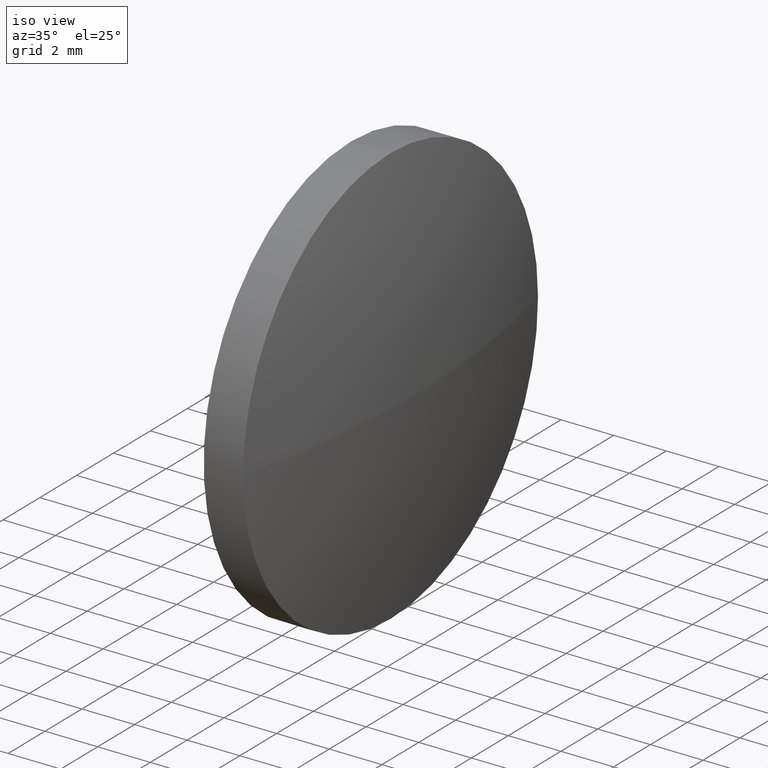
[diagram: clean part render]
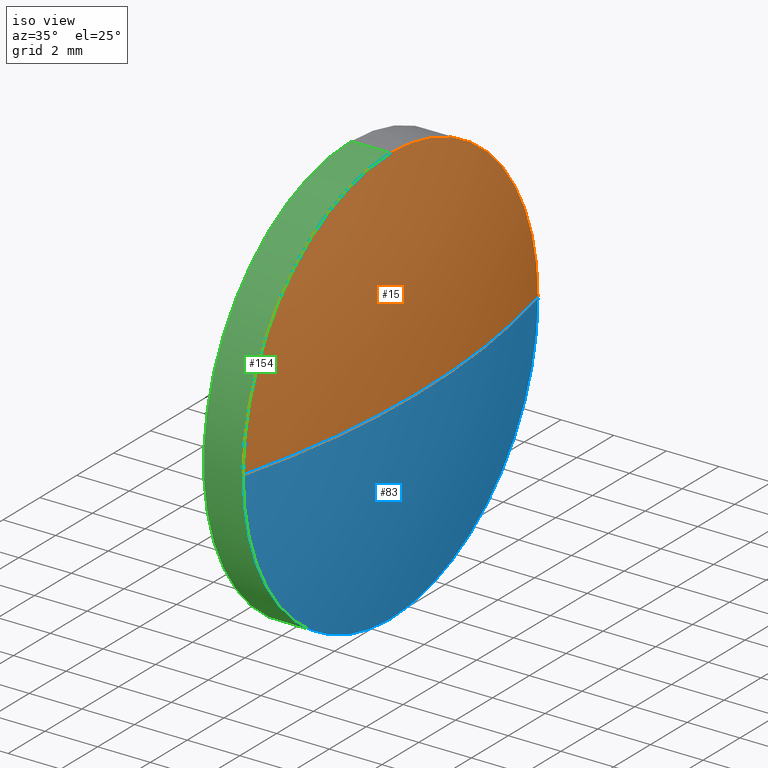
[diagram: same view with three faces highlighted in distinct colors, each labeled with its STEP entity id]
A machine part, iso view with three faces highlighted in distinct colors.
Their STEP definitions:

[orange] entity #15 — the highlighted spherical surface has radius 32.5 mm.
#3 = CIRCLE ( 'NONE', #37, 8.000000000000007100 ) ;
#15 = ADVANCED_FACE ( 'NONE', ( #181 ), #109, .T. ) ;
#17 = CARTESIAN_POINT ( 'NONE',  ( 646.4878629679331000, 90.34373980560192800, 8.000000000000007100 ) ) ;
#21 = DIRECTION ( 'NONE',  ( 0.0000000000000000000, -1.224646799147353200E-016, 1.000000000000000000 ) ) ;
#31 = CIRCLE ( 'NONE', #67, 32.50000000000008500 ) ;
#32 = EDGE_CURVE ( 'NONE', #180, #130, #31, .T. ) ;
#37 = AXIS2_PLACEMENT_3D ( 'NONE', #58, #162, #135 ) ;
#39 = DIRECTION ( 'NONE',  ( 0.0000000000000000000, -1.000000000000000000, 0.0000000000000000000 ) ) ;
#56 = CARTESIAN_POINT ( 'NONE',  ( 614.9878629679331000, 90.34373980560194200, 0.0000000000000000000 ) ) ;
#57 = DIRECTION ( 'NONE',  ( 0.0000000000000000000, 0.0000000000000000000, 1.000000000000000000 ) ) ;
#58 = CARTESIAN_POINT ( 'NONE',  ( 646.4878629679331000, 90.34373980560192800, 0.0000000000000000000 ) ) ;
#60 = CARTESIAN_POINT ( 'NONE',  ( 646.4878629679331000, 90.34373980560192800, 0.0000000000000000000 ) ) ;
#62 = AXIS2_PLACEMENT_3D ( 'NONE', #88, #57, #39 ) ;
#67 = AXIS2_PLACEMENT_3D ( 'NONE', #56, #21, #161 ) ;
#81 = CARTESIAN_POINT ( 'NONE',  ( 614.9878629679331000, 90.34373980560194200, 0.0000000000000000000 ) ) ;
#82 = AXIS2_PLACEMENT_3D ( 'NONE', #60, #96, #151 ) ;
#88 = CARTESIAN_POINT ( 'NONE',  ( 614.9878629679331000, 90.34373980560194200, 0.0000000000000000000 ) ) ;
#92 = CARTESIAN_POINT ( 'NONE',  ( 647.4878629679331000, 90.34373980560194200, 0.0000000000000000000 ) ) ;
#96 = DIRECTION ( 'NONE',  ( -1.000000000000000000, -0.0000000000000000000, -0.0000000000000000000 ) ) ;
#99 = VERTEX_POINT ( 'NONE', #17 ) ;
#101 = AXIS2_PLACEMENT_3D ( 'NONE', #81, #178, #131 ) ;
#104 = EDGE_CURVE ( 'NONE', #99, #130, #127, .T. ) ;
#108 = VERTEX_POINT ( 'NONE', #175 ) ;
#109 = SPHERICAL_SURFACE ( 'NONE', #62, 32.50000000000008500 ) ;
#121 = EDGE_CURVE ( 'NONE', #108, #99, #3, .T. ) ;
#125 = ORIENTED_EDGE ( 'NONE', *, *, #32, .T. ) ;
#127 = CIRCLE ( 'NONE', #82, 8.000000000000007100 ) ;
#130 = VERTEX_POINT ( 'NONE', #163 ) ;
#131 = DIRECTION ( 'NONE',  ( -1.000000000000000000, 0.0000000000000000000, 0.0000000000000000000 ) ) ;
#135 = DIRECTION ( 'NONE',  ( 0.0000000000000000000, 0.0000000000000000000, 1.000000000000000000 ) ) ;
#136 = ORIENTED_EDGE ( 'NONE', *, *, #104, .F. ) ;
#151 = DIRECTION ( 'NONE',  ( 0.0000000000000000000, 0.0000000000000000000, 1.000000000000000000 ) ) ;
#161 = DIRECTION ( 'NONE',  ( 0.0000000000000000000, -1.000000000000000000, -1.224646799147353200E-016 ) ) ;
#162 = DIRECTION ( 'NONE',  ( -1.000000000000000000, -0.0000000000000000000, -0.0000000000000000000 ) ) ;
#163 = CARTESIAN_POINT ( 'NONE',  ( 646.4878629679331000, 98.34373980560194200, 9.797174393178831600E-016 ) ) ;
#167 = ORIENTED_EDGE ( 'NONE', *, *, #182, .F. ) ;
#169 = CIRCLE ( 'NONE', #101, 32.50000000000008500 ) ;
#173 = EDGE_LOOP ( 'NONE', ( #167, #125, #136, #185 ) ) ;
#175 = CARTESIAN_POINT ( 'NONE',  ( 646.4878629679331000, 82.34373980560191300, 0.0000000000000000000 ) ) ;
#178 = DIRECTION ( 'NONE',  ( 0.0000000000000000000, 0.0000000000000000000, -1.000000000000000000 ) ) ;
#180 = VERTEX_POINT ( 'NONE', #92 ) ;
#181 = FACE_OUTER_BOUND ( 'NONE', #173, .T. ) ;
#182 = EDGE_CURVE ( 'NONE', #180, #108, #169, .T. ) ;
#185 = ORIENTED_EDGE ( 'NONE', *, *, #121, .F. ) ;

[blue] entity #83 — the highlighted spherical surface has radius 32.5 mm.
#1 = CARTESIAN_POINT ( 'NONE',  ( 646.4878629679331000, 90.34373980560192800, -8.000000000000007100 ) ) ;
#2 = DIRECTION ( 'NONE',  ( 0.0000000000000000000, 0.0000000000000000000, 1.000000000000000000 ) ) ;
#4 = CARTESIAN_POINT ( 'NONE',  ( 646.4878629679331000, 90.34373980560192800, 0.0000000000000000000 ) ) ;
#7 = ORIENTED_EDGE ( 'NONE', *, *, #164, .F. ) ;
#18 = DIRECTION ( 'NONE',  ( 0.0000000000000000000, 0.0000000000000000000, 1.000000000000000000 ) ) ;
#21 = DIRECTION ( 'NONE',  ( 0.0000000000000000000, -1.224646799147353200E-016, 1.000000000000000000 ) ) ;
#25 = DIRECTION ( 'NONE',  ( 0.0000000000000000000, 0.0000000000000000000, 1.000000000000000000 ) ) ;
#31 = CIRCLE ( 'NONE', #67, 32.50000000000008500 ) ;
#32 = EDGE_CURVE ( 'NONE', #180, #130, #31, .T. ) ;
#33 = VERTEX_POINT ( 'NONE', #1 ) ;
#40 = DIRECTION ( 'NONE',  ( 0.0000000000000000000, -1.000000000000000000, 0.0000000000000000000 ) ) ;
#41 = DIRECTION ( 'NONE',  ( -1.000000000000000000, -0.0000000000000000000, -0.0000000000000000000 ) ) ;
#42 = FACE_OUTER_BOUND ( 'NONE', #160, .T. ) ;
#48 = ORIENTED_EDGE ( 'NONE', *, *, #182, .T. ) ;
#50 = AXIS2_PLACEMENT_3D ( 'NONE', #4, #176, #25 ) ;
#56 = CARTESIAN_POINT ( 'NONE',  ( 614.9878629679331000, 90.34373980560194200, 0.0000000000000000000 ) ) ;
#67 = AXIS2_PLACEMENT_3D ( 'NONE', #56, #21, #161 ) ;
#73 = SPHERICAL_SURFACE ( 'NONE', #145, 32.50000000000008500 ) ;
#81 = CARTESIAN_POINT ( 'NONE',  ( 614.9878629679331000, 90.34373980560194200, 0.0000000000000000000 ) ) ;
#83 = ADVANCED_FACE ( 'NONE', ( #42 ), #73, .T. ) ;
#84 = ORIENTED_EDGE ( 'NONE', *, *, #32, .F. ) ;
#87 = CARTESIAN_POINT ( 'NONE',  ( 614.9878629679331000, 90.34373980560194200, 0.0000000000000000000 ) ) ;
#92 = CARTESIAN_POINT ( 'NONE',  ( 647.4878629679331000, 90.34373980560194200, 0.0000000000000000000 ) ) ;
#95 = EDGE_CURVE ( 'NONE', #33, #108, #105, .T. ) ;
#97 = CARTESIAN_POINT ( 'NONE',  ( 646.4878629679331000, 90.34373980560192800, 0.0000000000000000000 ) ) ;
#98 = ORIENTED_EDGE ( 'NONE', *, *, #95, .F. ) ;
#101 = AXIS2_PLACEMENT_3D ( 'NONE', #81, #178, #131 ) ;
#105 = CIRCLE ( 'NONE', #133, 8.000000000000007100 ) ;
#108 = VERTEX_POINT ( 'NONE', #175 ) ;
#111 = CIRCLE ( 'NONE', #50, 8.000000000000007100 ) ;
#130 = VERTEX_POINT ( 'NONE', #163 ) ;
#131 = DIRECTION ( 'NONE',  ( -1.000000000000000000, 0.0000000000000000000, 0.0000000000000000000 ) ) ;
#133 = AXIS2_PLACEMENT_3D ( 'NONE', #97, #41, #2 ) ;
#145 = AXIS2_PLACEMENT_3D ( 'NONE', #87, #18, #40 ) ;
#160 = EDGE_LOOP ( 'NONE', ( #84, #48, #98, #7 ) ) ;
#161 = DIRECTION ( 'NONE',  ( 0.0000000000000000000, -1.000000000000000000, -1.224646799147353200E-016 ) ) ;
#163 = CARTESIAN_POINT ( 'NONE',  ( 646.4878629679331000, 98.34373980560194200, 9.797174393178831600E-016 ) ) ;
#164 = EDGE_CURVE ( 'NONE', #130, #33, #111, .T. ) ;
#169 = CIRCLE ( 'NONE', #101, 32.50000000000008500 ) ;
#175 = CARTESIAN_POINT ( 'NONE',  ( 646.4878629679331000, 82.34373980560191300, 0.0000000000000000000 ) ) ;
#176 = DIRECTION ( 'NONE',  ( -1.000000000000000000, -0.0000000000000000000, -0.0000000000000000000 ) ) ;
#178 = DIRECTION ( 'NONE',  ( 0.0000000000000000000, 0.0000000000000000000, -1.000000000000000000 ) ) ;
#180 = VERTEX_POINT ( 'NONE', #92 ) ;
#182 = EDGE_CURVE ( 'NONE', #180, #108, #169, .T. ) ;

[green] entity #154 — the highlighted cylindrical surface (partial cylindrical patch) has radius 8 mm, axis along (-1, -0, -0).
#1 = CARTESIAN_POINT ( 'NONE',  ( 646.4878629679331000, 90.34373980560192800, -8.000000000000007100 ) ) ;
#2 = DIRECTION ( 'NONE',  ( 0.0000000000000000000, 0.0000000000000000000, 1.000000000000000000 ) ) ;
#3 = CIRCLE ( 'NONE', #37, 8.000000000000007100 ) ;
#14 = VERTEX_POINT ( 'NONE', #147 ) ;
#17 = CARTESIAN_POINT ( 'NONE',  ( 646.4878629679331000, 90.34373980560192800, 8.000000000000007100 ) ) ;
#22 = VECTOR ( 'NONE', #165, 1000.000000000000000 ) ;
#26 = ORIENTED_EDGE ( 'NONE', *, *, #95, .T. ) ;
#33 = VERTEX_POINT ( 'NONE', #1 ) ;
#36 = LINE ( 'NONE', #78, #22 ) ;
#37 = AXIS2_PLACEMENT_3D ( 'NONE', #58, #162, #135 ) ;
#38 = EDGE_CURVE ( 'NONE', #65, #14, #61, .T. ) ;
#41 = DIRECTION ( 'NONE',  ( -1.000000000000000000, -0.0000000000000000000, -0.0000000000000000000 ) ) ;
#43 = EDGE_CURVE ( 'NONE', #33, #65, #119, .T. ) ;
#52 = VECTOR ( 'NONE', #75, 1000.000000000000000 ) ;
#58 = CARTESIAN_POINT ( 'NONE',  ( 646.4878629679331000, 90.34373980560192800, 0.0000000000000000000 ) ) ;
#61 = CIRCLE ( 'NONE', #85, 8.000000000000007100 ) ;
#64 = ORIENTED_EDGE ( 'NONE', *, *, #43, .F. ) ;
#65 = VERTEX_POINT ( 'NONE', #90 ) ;
#66 = EDGE_LOOP ( 'NONE', ( #64, #26, #76, #117, #183 ) ) ;
#72 = AXIS2_PLACEMENT_3D ( 'NONE', #134, #107, #79 ) ;
#74 = CARTESIAN_POINT ( 'NONE',  ( 644.9878629679331000, 90.34373980560192800, 0.0000000000000000000 ) ) ;
#75 = DIRECTION ( 'NONE',  ( -1.000000000000000000, -0.0000000000000000000, -0.0000000000000000000 ) ) ;
#76 = ORIENTED_EDGE ( 'NONE', *, *, #121, .T. ) ;
#78 = CARTESIAN_POINT ( 'NONE',  ( 643.3398904949416400, 90.34373980560192800, 8.000000000000007100 ) ) ;
#79 = DIRECTION ( 'NONE',  ( 0.0000000000000000000, 0.0000000000000000000, 1.000000000000000000 ) ) ;
#85 = AXIS2_PLACEMENT_3D ( 'NONE', #74, #170, #89 ) ;
#89 = DIRECTION ( 'NONE',  ( 0.0000000000000000000, 0.0000000000000000000, 1.000000000000000000 ) ) ;
#90 = CARTESIAN_POINT ( 'NONE',  ( 644.9878629679331000, 90.34373980560192800, -8.000000000000007100 ) ) ;
#95 = EDGE_CURVE ( 'NONE', #33, #108, #105, .T. ) ;
#97 = CARTESIAN_POINT ( 'NONE',  ( 646.4878629679331000, 90.34373980560192800, 0.0000000000000000000 ) ) ;
#99 = VERTEX_POINT ( 'NONE', #17 ) ;
#105 = CIRCLE ( 'NONE', #133, 8.000000000000007100 ) ;
#107 = DIRECTION ( 'NONE',  ( -1.000000000000000000, -0.0000000000000000000, -0.0000000000000000000 ) ) ;
#108 = VERTEX_POINT ( 'NONE', #175 ) ;
#117 = ORIENTED_EDGE ( 'NONE', *, *, #168, .T. ) ;
#119 = LINE ( 'NONE', #172, #52 ) ;
#121 = EDGE_CURVE ( 'NONE', #108, #99, #3, .T. ) ;
#133 = AXIS2_PLACEMENT_3D ( 'NONE', #97, #41, #2 ) ;
#134 = CARTESIAN_POINT ( 'NONE',  ( 643.3398904949416400, 90.34373980560192800, 0.0000000000000000000 ) ) ;
#135 = DIRECTION ( 'NONE',  ( 0.0000000000000000000, 0.0000000000000000000, 1.000000000000000000 ) ) ;
#139 = CYLINDRICAL_SURFACE ( 'NONE', #72, 8.000000000000007100 ) ;
#147 = CARTESIAN_POINT ( 'NONE',  ( 644.9878629679331000, 90.34373980560192800, 8.000000000000007100 ) ) ;
#153 = FACE_OUTER_BOUND ( 'NONE', #66, .T. ) ;
#154 = ADVANCED_FACE ( 'NONE', ( #153 ), #139, .T. ) ;
#162 = DIRECTION ( 'NONE',  ( -1.000000000000000000, -0.0000000000000000000, -0.0000000000000000000 ) ) ;
#165 = DIRECTION ( 'NONE',  ( -1.000000000000000000, -0.0000000000000000000, -0.0000000000000000000 ) ) ;
#168 = EDGE_CURVE ( 'NONE', #99, #14, #36, .T. ) ;
#170 = DIRECTION ( 'NONE',  ( -1.000000000000000000, -0.0000000000000000000, -0.0000000000000000000 ) ) ;
#172 = CARTESIAN_POINT ( 'NONE',  ( 643.3398904949416400, 90.34373980560192800, -8.000000000000007100 ) ) ;
#175 = CARTESIAN_POINT ( 'NONE',  ( 646.4878629679331000, 82.34373980560191300, 0.0000000000000000000 ) ) ;
#183 = ORIENTED_EDGE ( 'NONE', *, *, #38, .F. ) ;